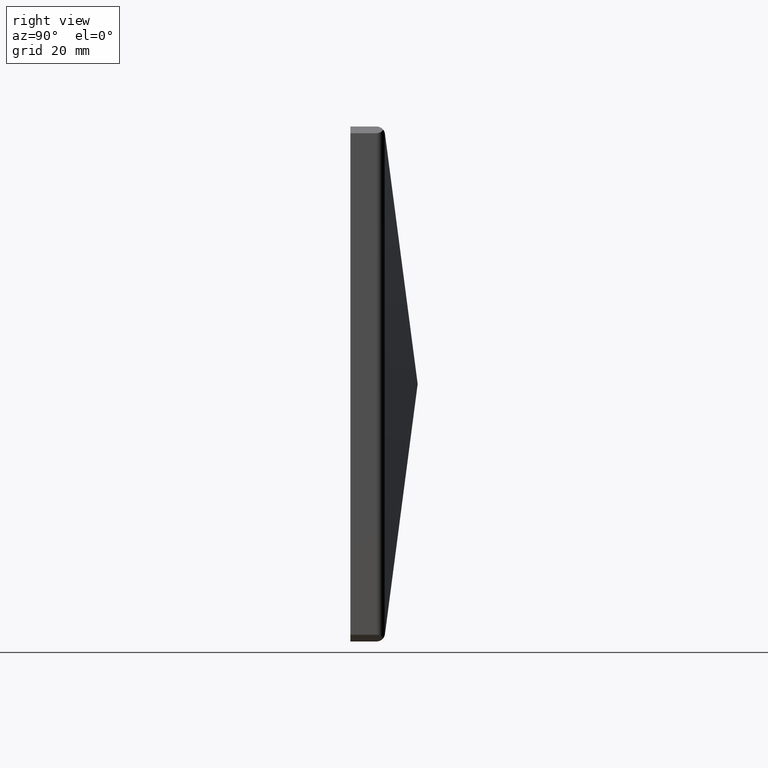
[diagram: clean part render]
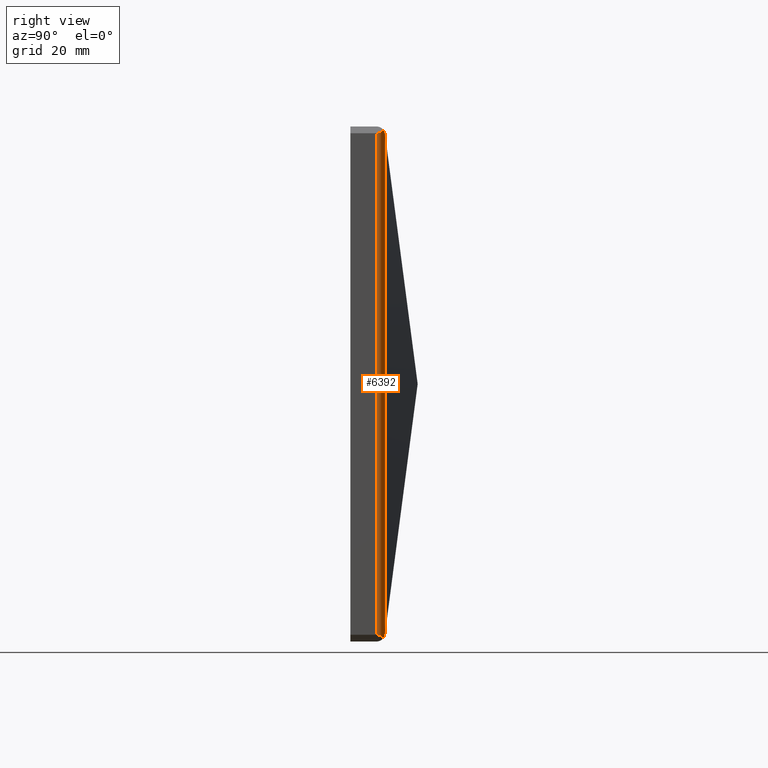
[diagram: same view with one face highlighted and labeled with its STEP entity id]
A machine part, right view. The second image highlights one B-rep face of the part: STEP entity #6392.
In plain terms, the highlighted cylindrical surface (edge-blend (fillet) strip) has radius 2.5 mm, axis along (-0, -0, 1).
Its self-contained STEP definition (entity closure, byte-faithful):
#725 = EDGE_CURVE ( 'NONE', #2165, #2824, #11983, .T. ) ;
#773 = CARTESIAN_POINT ( 'NONE',  ( 76.50000000000002842, 7.805552754732537402, 74.50000000000001421 ) ) ;
#863 = CARTESIAN_POINT ( 'NONE',  ( 76.14142982636371926, 9.324480384959722201, 74.85857017363629495 ) ) ;
#1188 = DIRECTION ( 'NONE',  ( -0.000000000000000000, -0.000000000000000000, 1.000000000000000000 ) ) ;
#1454 = CARTESIAN_POINT ( 'NONE',  ( 74.32406770863393319, 10.28445979619673878, 74.32406770863386214 ) ) ;
#1482 = CARTESIAN_POINT ( 'NONE',  ( 76.50000000000001421, 7.805552754732537402, -74.49999999999998579 ) ) ;
#1716 = VERTEX_POINT ( 'NONE', #7212 ) ;
#1973 = CARTESIAN_POINT ( 'NONE',  ( 74.32406770863408951, 10.28445979619672634, -74.32406770863399004 ) ) ;
#2012 = ORIENTED_EDGE ( 'NONE', *, *, #11253, .T. ) ;
#2078 = EDGE_CURVE ( 'NONE', #8955, #1716, #9860, .T. ) ;
#2158 = CYLINDRICAL_SURFACE ( 'NONE', #4432, 2.500000000000015987 ) ;
#2165 = VERTEX_POINT ( 'NONE', #1482 ) ;
#2405 =( BOUNDED_CURVE ( )  B_SPLINE_CURVE ( 3, ( #10645, #863, #11660, #773 ),
 .UNSPECIFIED., .F., .T. ) 
 B_SPLINE_CURVE_WITH_KNOTS ( ( 4, 4 ),
 ( 2.214297435588203022, 3.141592653589792228 ),
 .UNSPECIFIED. ) 
 CURVE ( )  GEOMETRIC_REPRESENTATION_ITEM ( )  RATIONAL_B_SPLINE_CURVE ( ( 1.000000000000000000, 0.9296181273332806416, 0.9296181273332806416, 1.000000000000000000 ) ) 
 REPRESENTATION_ITEM ( '' )  );
#2418 = ORIENTED_EDGE ( 'NONE', *, *, #6895, .F. ) ;
#2509 = VERTEX_POINT ( 'NONE', #4036 ) ;
#2670 = CARTESIAN_POINT ( 'NONE',  ( 76.49999999999998579, 7.805552754732534737, -76.50000000000001421 ) ) ;
#2740 = CARTESIAN_POINT ( 'NONE',  ( 76.50000000000001421, 7.805552754732537402, -74.49999999999998579 ) ) ;
#2824 = VERTEX_POINT ( 'NONE', #5490 ) ;
#4036 = CARTESIAN_POINT ( 'NONE',  ( 76.50000000000002842, 7.805552754732537402, 74.50000000000001421 ) ) ;
#4313 = CARTESIAN_POINT ( 'NONE',  ( 75.50000000000004263, 9.805552754732500986, 75.50000000000001421 ) ) ;
#4356 = CARTESIAN_POINT ( 'NONE',  ( 75.15384533243232568, 10.06516875540831180, 75.15384533243229725 ) ) ;
#4380 = DIRECTION ( 'NONE',  ( -0.000000000000000000, -0.000000000000000000, 1.000000000000000000 ) ) ;
#4411 = VECTOR ( 'NONE', #4380, 1000.000000000000000 ) ;
#4432 = AXIS2_PLACEMENT_3D ( 'NONE', #4890, #1188, #5848 ) ;
#4500 = ORIENTED_EDGE ( 'NONE', *, *, #6678, .T. ) ;
#4702 = CARTESIAN_POINT ( 'NONE',  ( 75.49999999999995737, 9.805552754732557830, -75.50000000000001421 ) ) ;
#4718 =( BOUNDED_CURVE ( )  B_SPLINE_CURVE ( 3, ( #1973, #11013, #11856, #11812 ),
 .UNSPECIFIED., .F., .F. ) 
 B_SPLINE_CURVE_WITH_KNOTS ( ( 4, 4 ),
 ( 1.700789207559229022, 2.214297435588166607 ),
 .UNSPECIFIED. ) 
 CURVE ( )  GEOMETRIC_REPRESENTATION_ITEM ( )  RATIONAL_B_SPLINE_CURVE ( ( 1.000000000000000000, 0.9781462266667767524, 0.9781462266667767524, 1.000000000000000000 ) ) 
 REPRESENTATION_ITEM ( '' )  );
#4890 = CARTESIAN_POINT ( 'NONE',  ( 73.99999999999998579, 7.805552754732534737, -76.50000000000001421 ) ) ;
#5441 = CARTESIAN_POINT ( 'NONE',  ( 74.75311033006859418, 10.22837102122092823, 74.75311033006856576 ) ) ;
#5490 = CARTESIAN_POINT ( 'NONE',  ( 75.49999999999995737, 9.805552754732557830, -75.50000000000001421 ) ) ;
#5709 = CARTESIAN_POINT ( 'NONE',  ( 74.32406770863408951, 10.28445979619672634, -74.32406770863399004 ) ) ;
#5821 = DIRECTION ( 'NONE',  ( -0.000000000000000000, -0.000000000000000000, 1.000000000000000000 ) ) ;
#5848 = DIRECTION ( 'NONE',  ( 1.000000000000000000, 0.000000000000000000, 0.000000000000000000 ) ) ;
#6077 = CARTESIAN_POINT ( 'NONE',  ( 74.32406770863390477, 10.28445979619673878, -76.50000000000001421 ) ) ;
#6392 = ADVANCED_FACE ( 'NONE', ( #9573 ), #2158, .T. ) ;
#6606 = LINE ( 'NONE', #6077, #4411 ) ;
#6678 = EDGE_CURVE ( 'NONE', #8955, #2509, #2405, .T. ) ;
#6895 = EDGE_CURVE ( 'NONE', #2165, #2509, #10490, .T. ) ;
#7212 = CARTESIAN_POINT ( 'NONE',  ( 74.32406770863393319, 10.28445979619673878, 74.32406770863386214 ) ) ;
#7406 = CARTESIAN_POINT ( 'NONE',  ( 75.50000000000004263, 9.805552754732500986, 75.50000000000001421 ) ) ;
#7798 = ORIENTED_EDGE ( 'NONE', *, *, #725, .T. ) ;
#8550 = CARTESIAN_POINT ( 'NONE',  ( 76.50000000000000000, 8.607340037687185585, -74.50000000000000000 ) ) ;
#8855 = ORIENTED_EDGE ( 'NONE', *, *, #12234, .F. ) ;
#8955 = VERTEX_POINT ( 'NONE', #7406 ) ;
#9529 = VERTEX_POINT ( 'NONE', #5709 ) ;
#9573 = FACE_OUTER_BOUND ( 'NONE', #12193, .T. ) ;
#9860 =( BOUNDED_CURVE ( )  B_SPLINE_CURVE ( 3, ( #4313, #4356, #5441, #1454 ),
 .UNSPECIFIED., .F., .F. ) 
 B_SPLINE_CURVE_WITH_KNOTS ( ( 4, 4 ),
 ( 0.9272952180015858747, 1.440803446030600954 ),
 .UNSPECIFIED. ) 
 CURVE ( )  GEOMETRIC_REPRESENTATION_ITEM ( )  RATIONAL_B_SPLINE_CURVE ( ( 1.000000000000000000, 0.9781462266667700911, 0.9781462266667700911, 1.000000000000000000 ) ) 
 REPRESENTATION_ITEM ( '' )  );
#10199 = VECTOR ( 'NONE', #5821, 1000.000000000000000 ) ;
#10252 = ORIENTED_EDGE ( 'NONE', *, *, #2078, .F. ) ;
#10490 = LINE ( 'NONE', #2670, #10199 ) ;
#10593 = CARTESIAN_POINT ( 'NONE',  ( 76.14142982636367663, 9.324480384959770163, -74.85857017363626653 ) ) ;
#10645 = CARTESIAN_POINT ( 'NONE',  ( 75.50000000000004263, 9.805552754732500986, 75.50000000000001421 ) ) ;
#11013 = CARTESIAN_POINT ( 'NONE',  ( 74.75311033006859418, 10.22837102122090158, -74.75311033006867945 ) ) ;
#11253 = EDGE_CURVE ( 'NONE', #9529, #1716, #6606, .T. ) ;
#11660 = CARTESIAN_POINT ( 'NONE',  ( 76.50000000000000000, 8.607340037687160716, 74.50000000000002842 ) ) ;
#11812 = CARTESIAN_POINT ( 'NONE',  ( 75.49999999999995737, 9.805552754732557830, -75.50000000000001421 ) ) ;
#11856 = CARTESIAN_POINT ( 'NONE',  ( 75.15384533243226883, 10.06516875540831180, -75.15384533243233989 ) ) ;
#11983 =( BOUNDED_CURVE ( )  B_SPLINE_CURVE ( 3, ( #2740, #8550, #10593, #4702 ),
 .UNSPECIFIED., .F., .F. ) 
 B_SPLINE_CURVE_WITH_KNOTS ( ( 4, 4 ),
 ( 1.040834085586072029E-15, 0.9272952180016219570 ),
 .UNSPECIFIED. ) 
 CURVE ( )  GEOMETRIC_REPRESENTATION_ITEM ( )  RATIONAL_B_SPLINE_CURVE ( ( 1.000000000000000000, 0.9296181273332759787, 0.9296181273332759787, 1.000000000000000000 ) ) 
 REPRESENTATION_ITEM ( '' )  );
#12193 = EDGE_LOOP ( 'NONE', ( #10252, #4500, #2418, #7798, #8855, #2012 ) ) ;
#12234 = EDGE_CURVE ( 'NONE', #9529, #2824, #4718, .T. ) ;